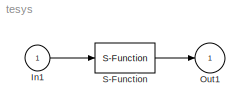
MODEL tesys
KIND model
CONFIG AbsTol = auto
CONFIG FixedStep = auto
CONFIG MaxStep = auto
CONFIG MinStep = auto
CONFIG RelTol = 1e-3
CONFIG Solver = ode45
CONFIG SolverMode = Auto
CONFIG StartTime = 0.0
CONFIG StopTime = 10.0
BLOCK [Inport] In1
BLOCK [Outport] Out1
BLOCK [S-Function] S-Function
  FunctionName = temex
  Parameters = [],[zeros(1,20)]
  Ports = [1, 1]
LINE In1:1 -> S-Function:1
LINE S-Function:1 -> Out1:1
